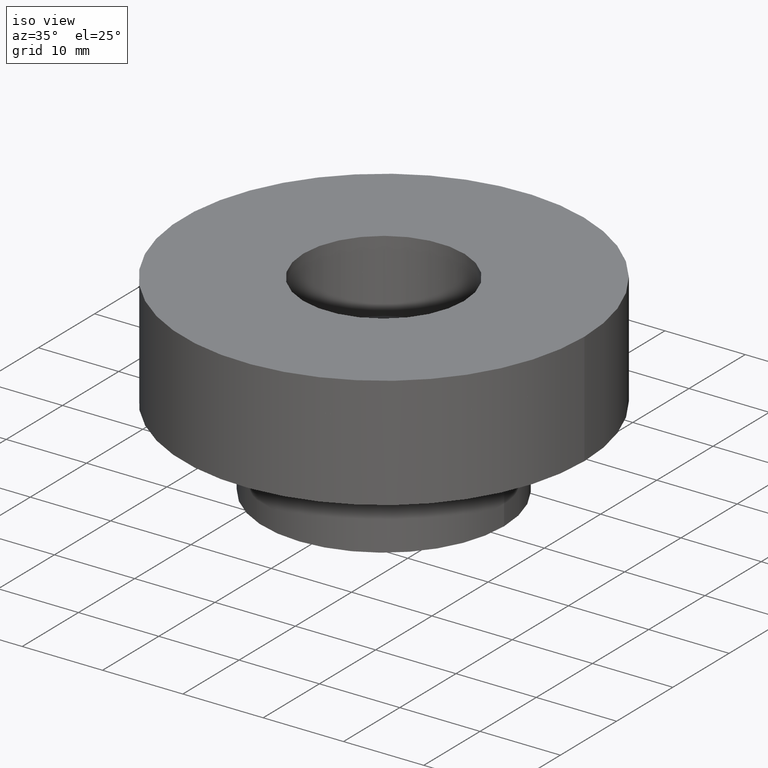
[diagram: clean part render]
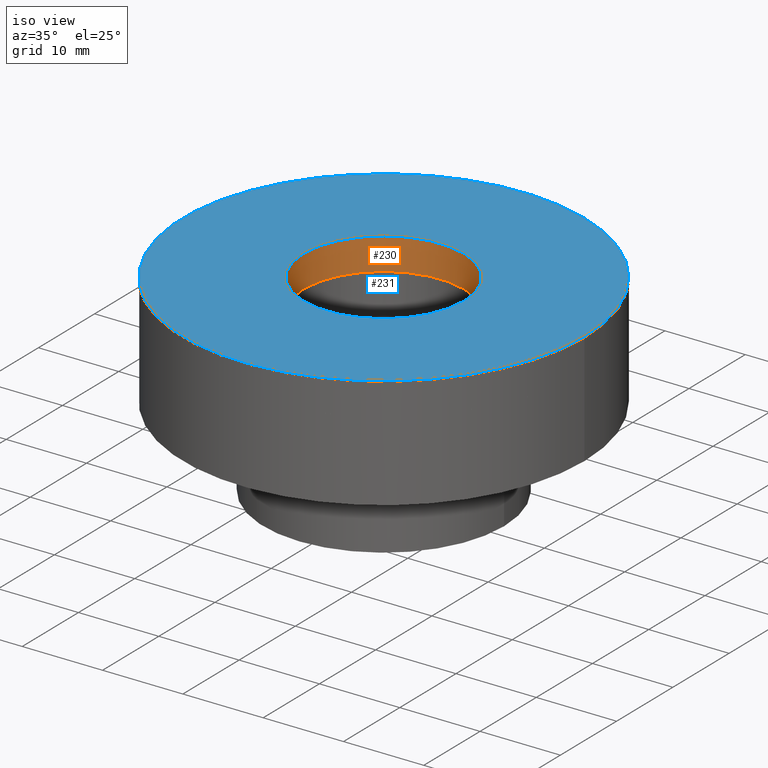
[diagram: same view with the hole feature highlighted: cylindrical wall and planar end face, labeled with their STEP entity ids]
A machine part, iso view. The highlighted faces form one hole feature of diameter 20 mm: the cylindrical wall (entity #230, orange) and its adjacent planar end face (entity #231, blue) — they share a circular edge in the B-rep.
Wall:
#230 = ADVANCED_FACE( '', ( #287, #288 ), #289, .F. );
#287 = FACE_OUTER_BOUND( '', #359, .T. );
#288 = FACE_OUTER_BOUND( '', #360, .T. );
#289 = CYLINDRICAL_SURFACE( '', #361, 10.0000000000000 );
#359 = EDGE_LOOP( '', ( #477 ) );
#360 = EDGE_LOOP( '', ( #478 ) );
#361 = AXIS2_PLACEMENT_3D( '', #479, #480, #481 );
#477 = ORIENTED_EDGE( '', *, *, #584, .T. );
#478 = ORIENTED_EDGE( '', *, *, #586, .T. );
#479 = CARTESIAN_POINT( '', ( 0.000000000000000, 0.000000000000000, -19.0000000000000 ) );
#480 = DIRECTION( '', ( -0.000000000000000, 0.000000000000000, -1.00000000000000 ) );
#481 = DIRECTION( '', ( -1.00000000000000, 0.000000000000000, 0.000000000000000 ) );
#584 = EDGE_CURVE( '', #647, #647, #648, .F. );
#586 = EDGE_CURVE( '', #651, #651, #652, .T. );
#647 = VERTEX_POINT( '', #841 );
#648 = CIRCLE( '', #842, 10.0000000000000 );
#651 = VERTEX_POINT( '', #845 );
#652 = CIRCLE( '', #846, 10.0000000000000 );
#841 = CARTESIAN_POINT( '', ( 10.0000000000000, 0.000000000000000, -14.0000000000000 ) );
#842 = AXIS2_PLACEMENT_3D( '', #966, #967, #968 );
#845 = CARTESIAN_POINT( '', ( 10.0000000000000, 0.000000000000000, -10.0000000000000 ) );
#846 = AXIS2_PLACEMENT_3D( '', #972, #973, #974 );
#966 = CARTESIAN_POINT( '', ( 0.000000000000000, 0.000000000000000, -14.0000000000000 ) );
#967 = DIRECTION( '', ( 0.000000000000000, -0.000000000000000, 1.00000000000000 ) );
#968 = DIRECTION( '', ( 1.00000000000000, 0.000000000000000, 0.000000000000000 ) );
#972 = CARTESIAN_POINT( '', ( 0.000000000000000, 0.000000000000000, -10.0000000000000 ) );
#973 = DIRECTION( '', ( 0.000000000000000, -0.000000000000000, 1.00000000000000 ) );
#974 = DIRECTION( '', ( 1.00000000000000, 0.000000000000000, 0.000000000000000 ) );
End face:
#231 = ADVANCED_FACE( '', ( #290, #291 ), #292, .F. );
#290 = FACE_BOUND( '', #362, .T. );
#291 = FACE_OUTER_BOUND( '', #363, .T. );
#292 = PLANE( '', #364 );
#362 = EDGE_LOOP( '', ( #482 ) );
#363 = EDGE_LOOP( '', ( #483 ) );
#364 = AXIS2_PLACEMENT_3D( '', #484, #485, #486 );
#482 = ORIENTED_EDGE( '', *, *, #586, .F. );
#483 = ORIENTED_EDGE( '', *, *, #585, .T. );
#484 = CARTESIAN_POINT( '', ( 0.000000000000000, 0.000000000000000, -10.0000000000000 ) );
#485 = DIRECTION( '', ( 0.000000000000000, 0.000000000000000, -1.00000000000000 ) );
#486 = DIRECTION( '', ( 1.00000000000000, 0.000000000000000, 0.000000000000000 ) );
#585 = EDGE_CURVE( '', #649, #649, #650, .T. );
#586 = EDGE_CURVE( '', #651, #651, #652, .T. );
#649 = VERTEX_POINT( '', #843 );
#650 = CIRCLE( '', #844, 25.0000000000000 );
#651 = VERTEX_POINT( '', #845 );
#652 = CIRCLE( '', #846, 10.0000000000000 );
#843 = CARTESIAN_POINT( '', ( 25.0000000000000, 0.000000000000000, -10.0000000000000 ) );
#844 = AXIS2_PLACEMENT_3D( '', #969, #970, #971 );
#845 = CARTESIAN_POINT( '', ( 10.0000000000000, 0.000000000000000, -10.0000000000000 ) );
#846 = AXIS2_PLACEMENT_3D( '', #972, #973, #974 );
#969 = CARTESIAN_POINT( '', ( 0.000000000000000, 0.000000000000000, -10.0000000000000 ) );
#970 = DIRECTION( '', ( 0.000000000000000, -0.000000000000000, 1.00000000000000 ) );
#971 = DIRECTION( '', ( 1.00000000000000, 0.000000000000000, 0.000000000000000 ) );
#972 = CARTESIAN_POINT( '', ( 0.000000000000000, 0.000000000000000, -10.0000000000000 ) );
#973 = DIRECTION( '', ( 0.000000000000000, -0.000000000000000, 1.00000000000000 ) );
#974 = DIRECTION( '', ( 1.00000000000000, 0.000000000000000, 0.000000000000000 ) );